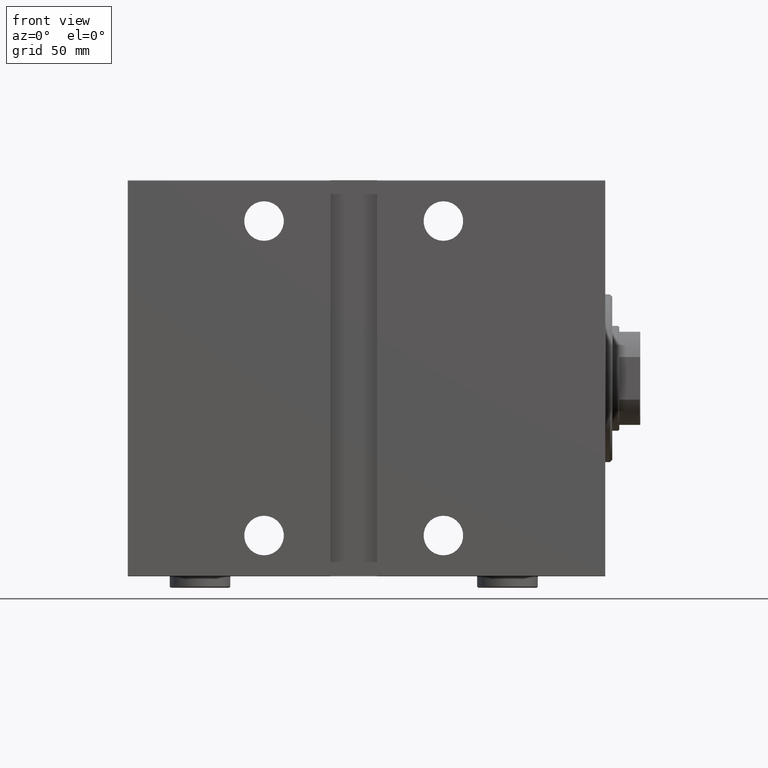
[diagram: clean part render]
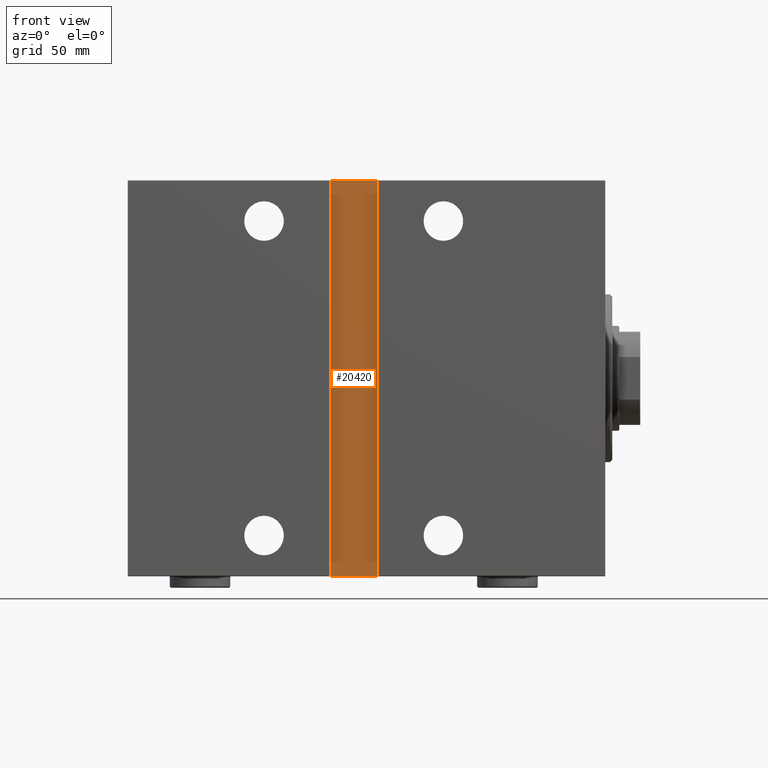
[diagram: same view with one face highlighted and labeled with its STEP entity id]
A machine part, front view. The second image highlights one B-rep face of the part: STEP entity #20420.
In plain terms, the highlighted planar face has unit normal (-0, 1, -0).
Its self-contained STEP definition (entity closure, byte-faithful):
#963 = DIRECTION ( 'NONE',  ( -1.000000000000000000, 0.000000000000000000, 0.000000000000000000 ) ) ;
#1151 = AXIS2_PLACEMENT_3D ( 'NONE', #36269, #5519, #23013 ) ;
#2377 = FACE_OUTER_BOUND ( 'NONE', #22329, .T. ) ;
#2684 = EDGE_CURVE ( 'NONE', #37347, #38986, #33222, .T. ) ;
#5192 = VECTOR ( 'NONE', #963, 1000.000000000000000 ) ;
#5519 = DIRECTION ( 'NONE',  ( 0.000000000000000000, -1.000000000000000000, -1.632680918566406300E-16 ) ) ;
#5626 = CARTESIAN_POINT ( 'NONE',  ( 98.00000000000000000, 65.00000000000004263, -85.00000000000001421 ) ) ;
#6993 = EDGE_CURVE ( 'NONE', #11174, #37347, #28790, .T. ) ;
#9023 = VECTOR ( 'NONE', #26051, 1000.000000000000000 ) ;
#9309 = CARTESIAN_POINT ( 'NONE',  ( 118.0000000000000284, 65.00000000000001421, 85.00000000000001421 ) ) ;
#11072 = ORIENTED_EDGE ( 'NONE', *, *, #2684, .T. ) ;
#11174 = VERTEX_POINT ( 'NONE', #22498 ) ;
#12019 = ORIENTED_EDGE ( 'NONE', *, *, #39799, .T. ) ;
#12349 = CARTESIAN_POINT ( 'NONE',  ( 98.00000000000000000, 65.00000000000004263, -85.00000000000001421 ) ) ;
#15738 = CARTESIAN_POINT ( 'NONE',  ( 118.0000000000000142, 65.00000000000004263, -85.00000000000001421 ) ) ;
#17698 = EDGE_CURVE ( 'NONE', #36343, #11174, #29874, .T. ) ;
#20404 = VECTOR ( 'NONE', #23127, 1000.000000000000000 ) ;
#20420 = ADVANCED_FACE ( 'NONE', ( #2377 ), #22577, .F. ) ;
#22329 = EDGE_LOOP ( 'NONE', ( #11072, #12019, #36906, #38881 ) ) ;
#22498 = CARTESIAN_POINT ( 'NONE',  ( 118.0000000000000284, 65.00000000000001421, -85.00000000000000000 ) ) ;
#22577 = PLANE ( 'NONE',  #1151 ) ;
#22992 = DIRECTION ( 'NONE',  ( 1.000000000000000000, -0.000000000000000000, -0.000000000000000000 ) ) ;
#23013 = DIRECTION ( 'NONE',  ( 0.000000000000000000, 1.632680918566406300E-16, -1.000000000000000000 ) ) ;
#23127 = DIRECTION ( 'NONE',  ( -8.163404592832031500E-17, 1.632680918566406300E-16, -1.000000000000000000 ) ) ;
#26051 = DIRECTION ( 'NONE',  ( 0.000000000000000000, -1.632680918566406300E-16, 1.000000000000000000 ) ) ;
#27836 = VECTOR ( 'NONE', #22992, 1000.000000000000000 ) ;
#28790 = LINE ( 'NONE', #38672, #5192 ) ;
#29355 = CARTESIAN_POINT ( 'NONE',  ( 118.0000000000000284, 65.00000000000001421, 85.00000000000001421 ) ) ;
#29874 = LINE ( 'NONE', #15738, #20404 ) ;
#33222 = LINE ( 'NONE', #5626, #9023 ) ;
#36269 = CARTESIAN_POINT ( 'NONE',  ( 0.000000000000000000, 65.00000000000002842, 1.079795789324601158E-14 ) ) ;
#36343 = VERTEX_POINT ( 'NONE', #29355 ) ;
#36906 = ORIENTED_EDGE ( 'NONE', *, *, #17698, .T. ) ;
#37347 = VERTEX_POINT ( 'NONE', #12349 ) ;
#37833 = CARTESIAN_POINT ( 'NONE',  ( 98.00000000000000000, 65.00000000000001421, 85.00000000000001421 ) ) ;
#38672 = CARTESIAN_POINT ( 'NONE',  ( 118.0000000000000142, 65.00000000000004263, -85.00000000000001421 ) ) ;
#38881 = ORIENTED_EDGE ( 'NONE', *, *, #6993, .T. ) ;
#38986 = VERTEX_POINT ( 'NONE', #37833 ) ;
#39799 = EDGE_CURVE ( 'NONE', #38986, #36343, #43625, .T. ) ;
#43625 = LINE ( 'NONE', #9309, #27836 ) ;